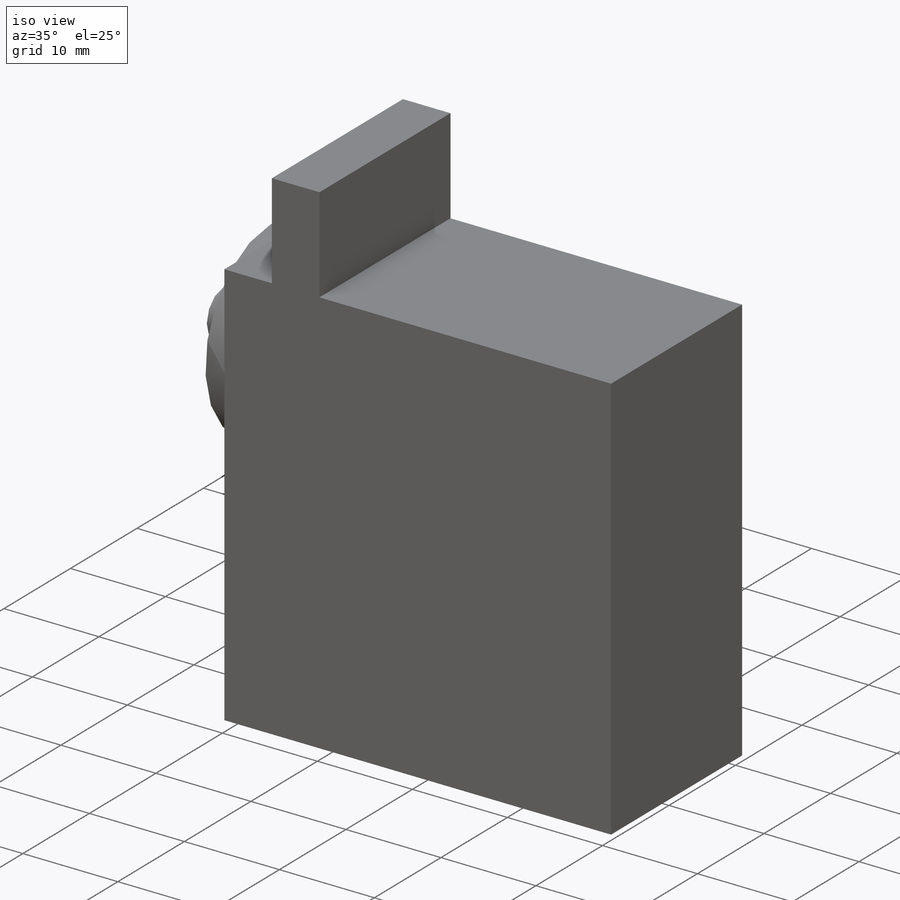
[diagram: iso view]
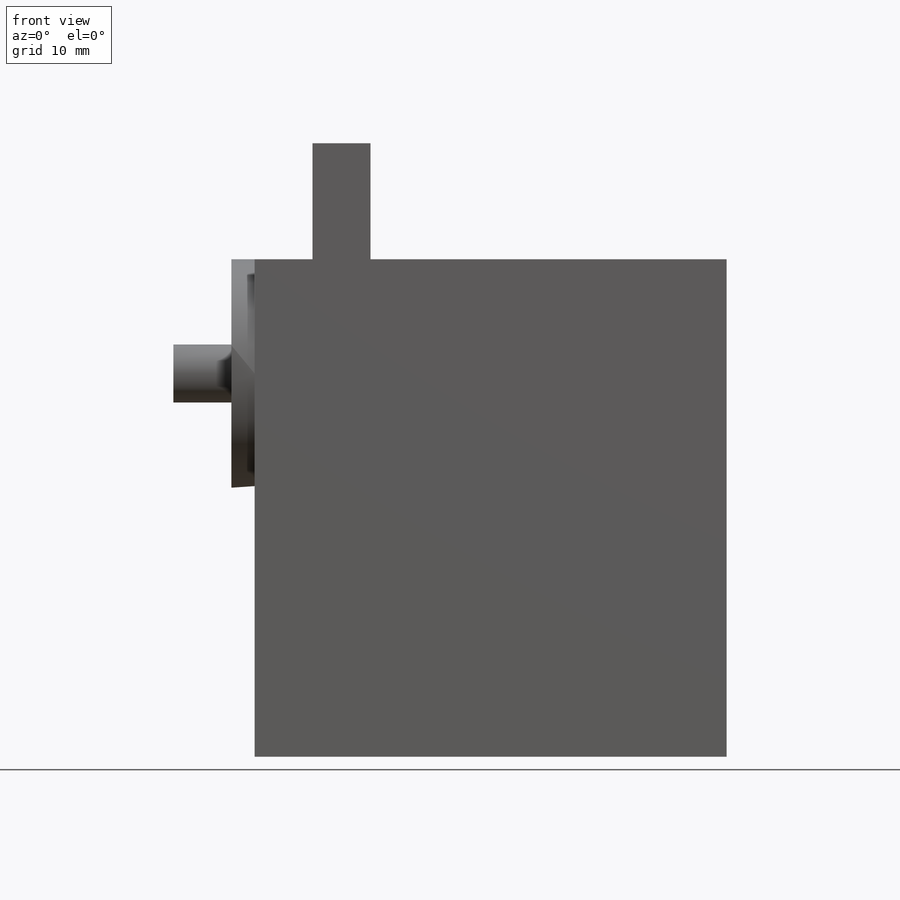
[diagram: front view]
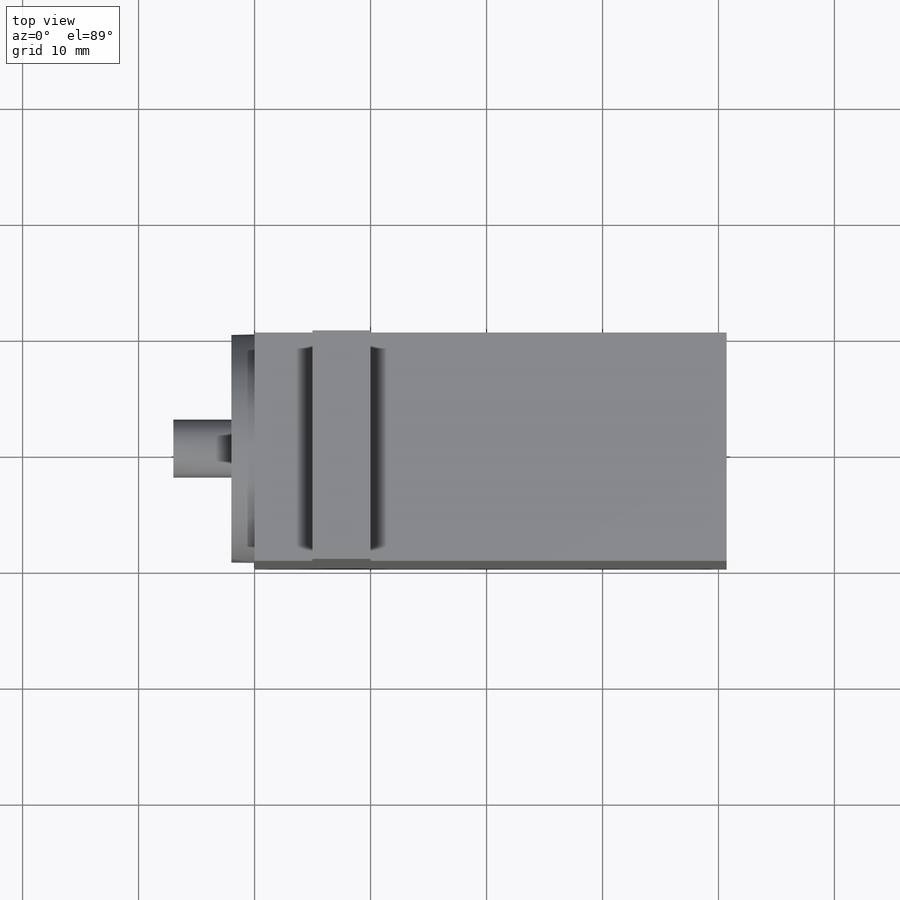
[diagram: top view]
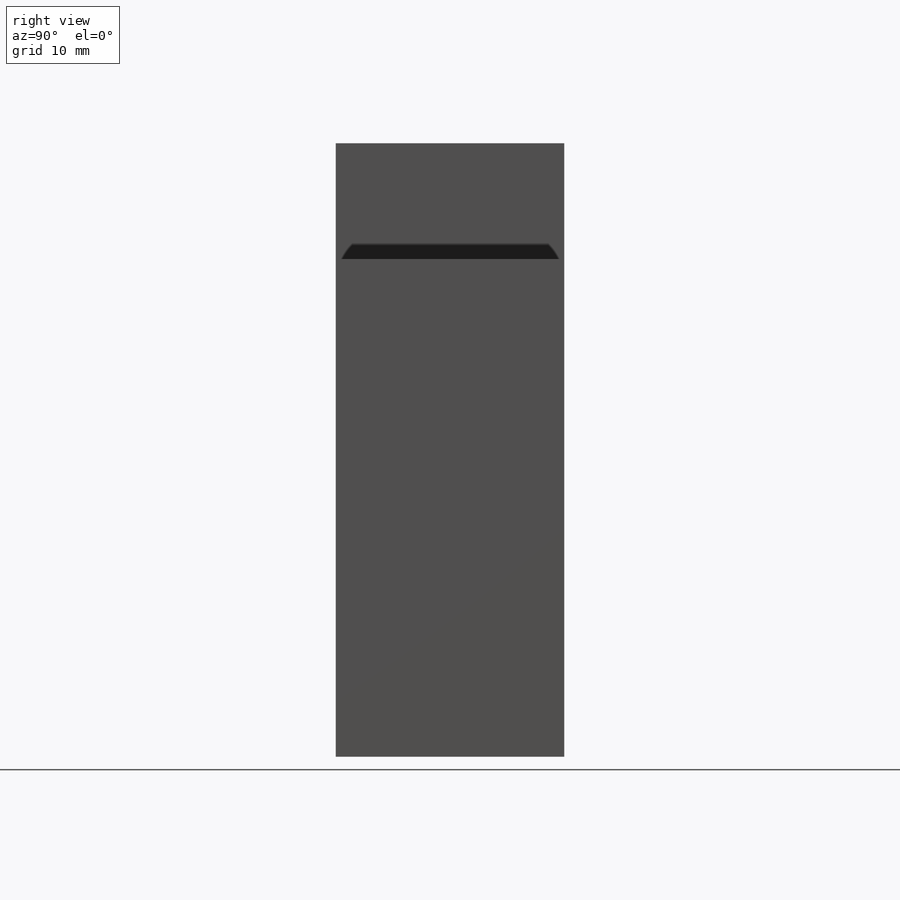
[diagram: right view]
SOLIDWORKS PART (.sldprt)
format: sldprt  version: not decoded by parser v0  size: 154,112 bytes
history: native  units: mm
features: sketch x4, extrude x4, plane x3, material x1 (+8 scaffold rows collapsed)
feature tree (20):
  scaffold x8  (default folders/planes/origin — collapsed)
  material  "材質 <未指定>"
  plane  "前基準面"
  plane  "上基準面"
  plane  "右基準面"
  sketch  "草圖1"  dims[D1=40.7mm D2=42.9mm]
  extrude  "填料-伸長1"  Depth=19.7mm
  sketch  "草圖2"  dims[D1=5.0mm D2=5.0mm]
  extrude  "填料-伸長2"  Depth=10mm
  sketch  "草圖3"
  extrude  "填料-伸長3"  Depth=2mm
  sketch  "草圖4"  dims[D1=5.0mm]
  extrude  "填料-伸長4"  Depth=5mm
decode coverage: 7 of 8 modeling features carry decoded parameters
note: suppression state not decoded; provenance and decode notes live in map.json
